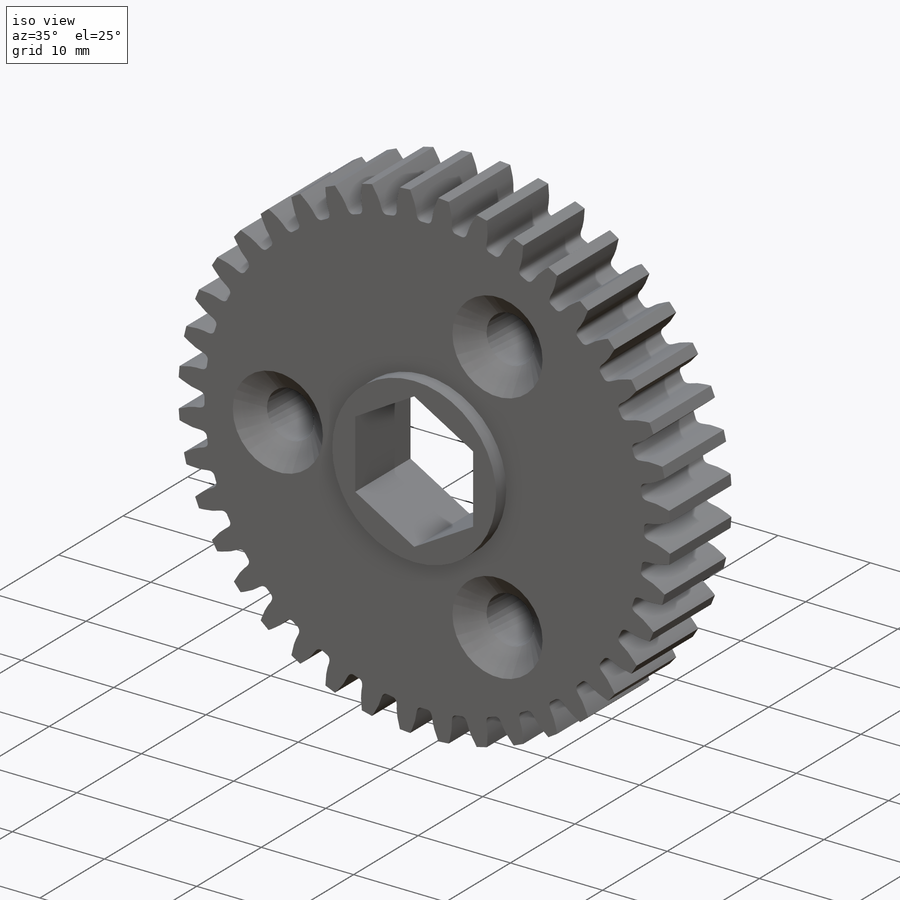
[diagram: iso view]
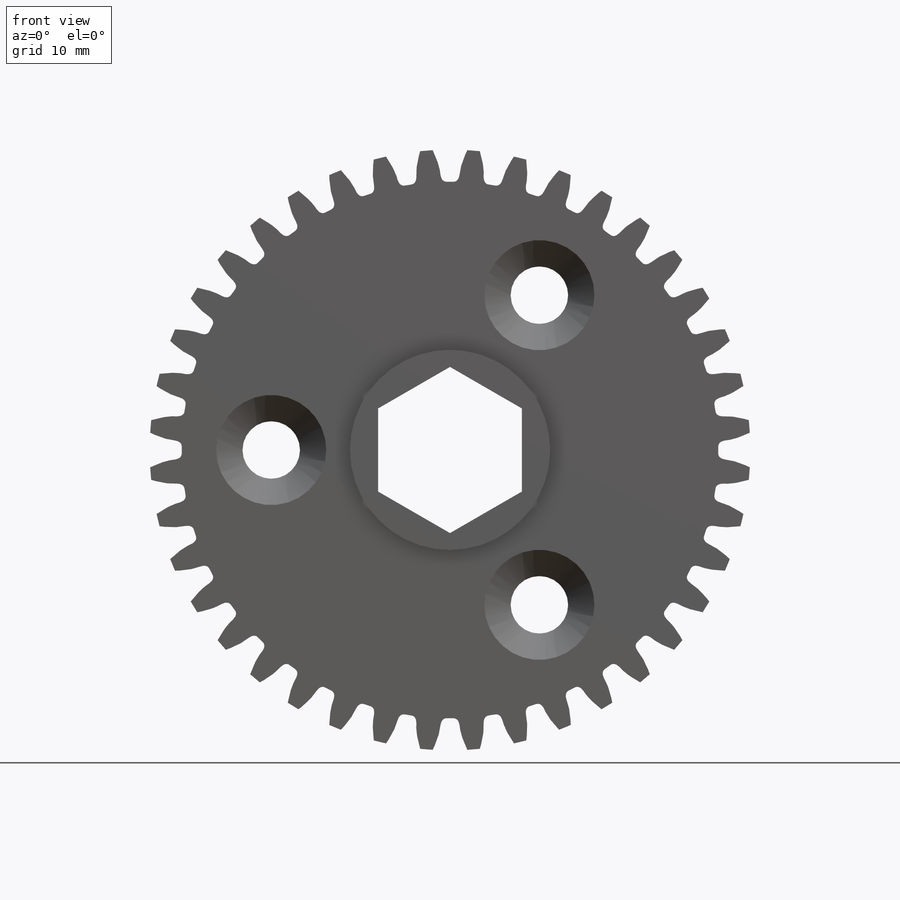
[diagram: front view]
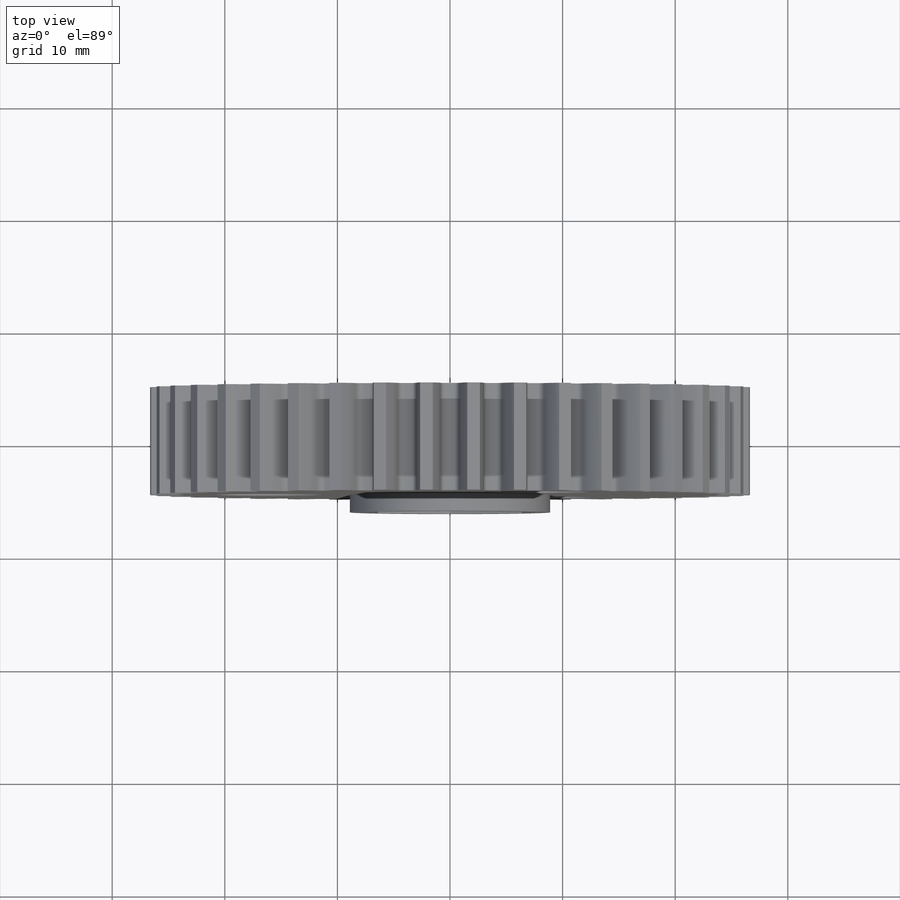
[diagram: top view]
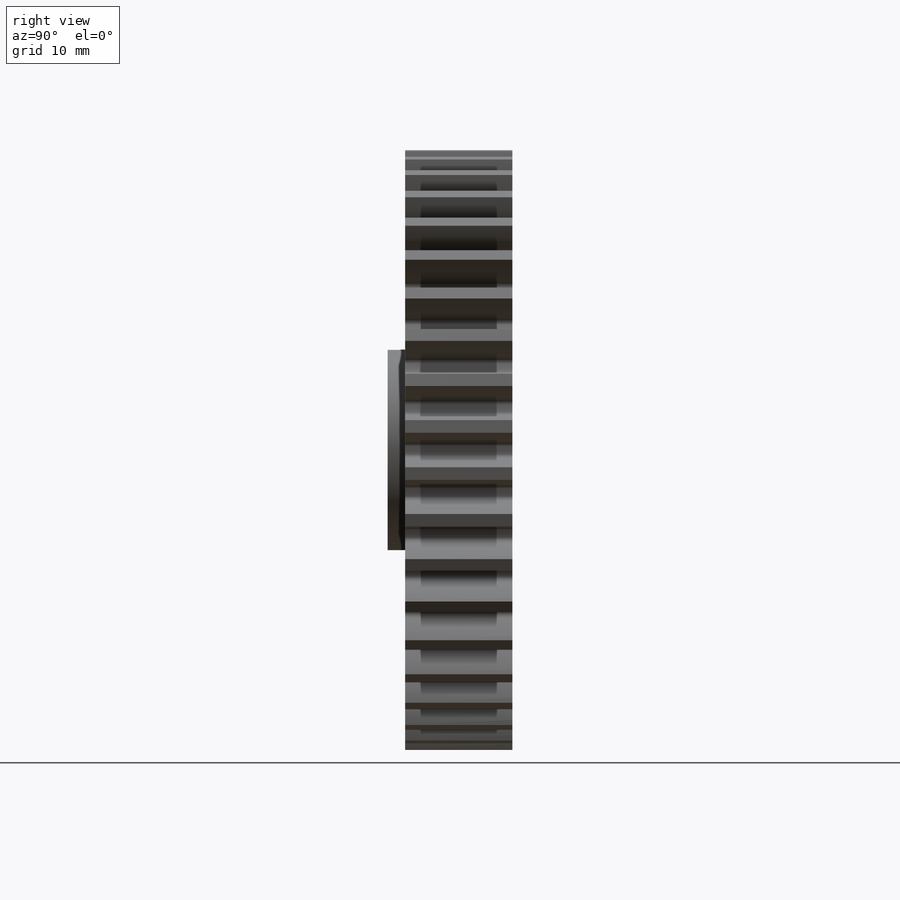
[diagram: right view]
SOLIDWORKS PART (.sldprt)
format: sldprt  version: not decoded by parser v0  size: 706,048 bytes
history: native  units: mm
features: sketch x8, plane x2, extrude x2, cut_extrude x2, material x1, hole x1 (+12 scaffold rows collapsed)
feature tree (28):
  scaffold x12  (default folders/planes/origin — collapsed)
  material  "6061-T6 (SS)"
  plane  "Side"
  plane  "Plane1"
  sketch  "Sketch1"
  extrude  "Boss-Extrude1"  Depth=9.525mm
  sketch  "Sketch3"
  extrude  "Boss-Extrude3"  Depth=1.5621mm
  sketch  "Sketch4"
  cut_extrude  "Cut-Extrude1"  Depth=12.6492mm
  sketch  "Sketch5"  dims[D1=12.7762mm D2=3.175mm]
  hole  "CSK for #10 Flat Head Machine Screw (100)1"  Diameter=5.1054mm Depth=9.525mm
  sketch  "Sketch7"  dims[c1.D1=15.494mm c1.D2=15.494mm c1.D3=15.494mm c1.D4=16.002mm c2.D4=120.0deg c2.D5=~15.226484mm c3.D5=120.0deg c3.D6=~13.91412mm c4.D6=120.0deg c4.D4=~10.191321mm c5.D4=120.0deg c5.D5=16.002mm c6.D5=120.0deg c6.D1=~27.496306mm c6.D2=~27.496306mm c6.D3=~27.496306mm c6.D6=15.875mm c6.D7=15.875mm c7.D1=15.875mm c7.D2=15.875mm]
  sketch  "Sketch6"  dims[hole-wizard template sketch: 55 standard entries collapsed; hole parameters kept: c17.Thru Hole Depth=9.525mm c17.Near C'Sink Dia.=9.779mm c17.D4=~3.666174mm c17.Near C'Sink Angle=100.0deg]
  sketch  "Sketch9"  dims[D1=24.638mm]
  cut_extrude  "Cut-Extrude2"  Depth=2.54mm
  sketch  "Sketch10"
decode coverage: 9 of 13 modeling features carry decoded parameters
note: ~ marks probable driven/reference dimensions
note: suppression state not decoded; provenance and decode notes live in map.json
